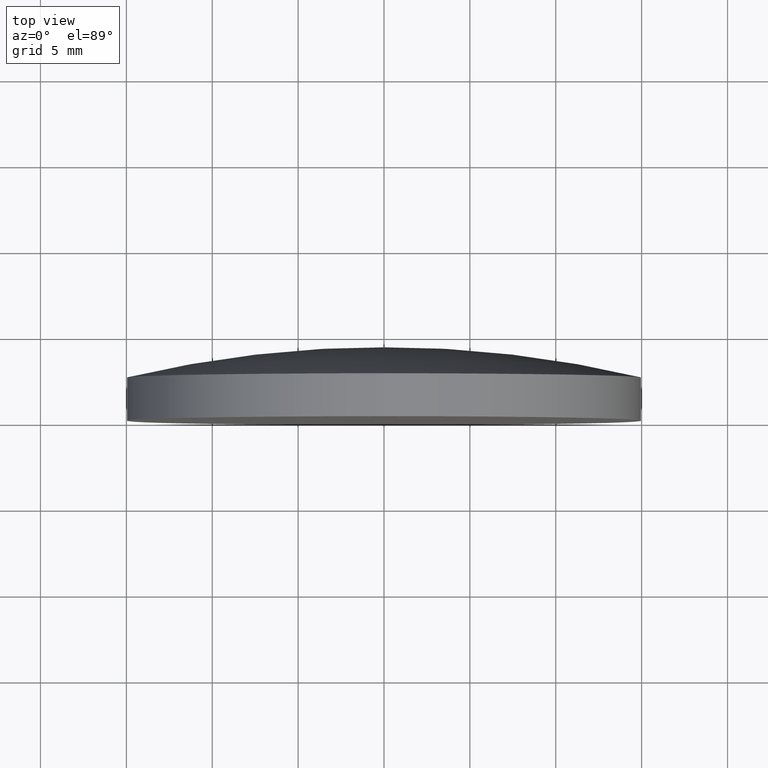
[diagram: clean part render]
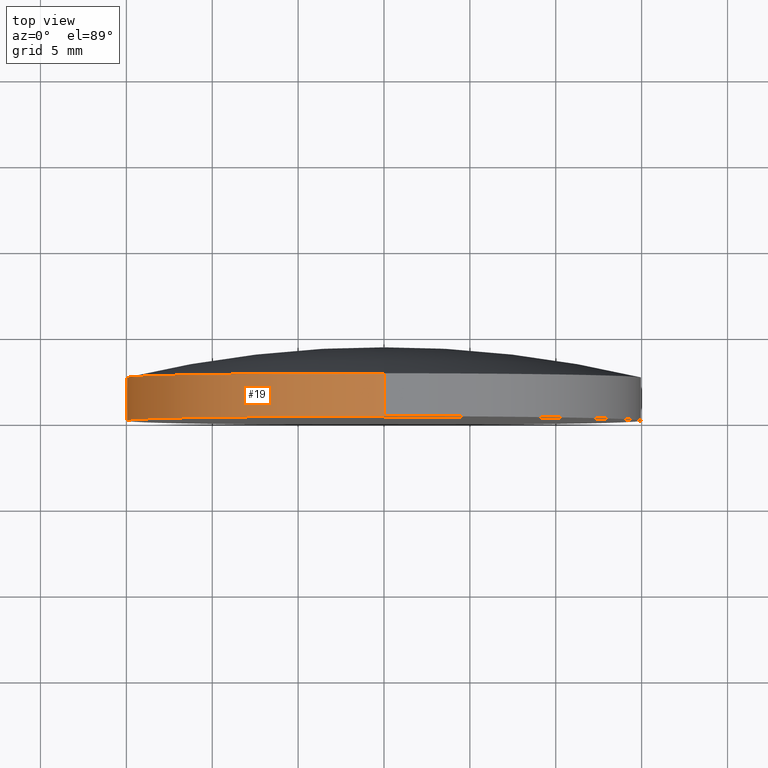
[diagram: same view with one face highlighted and labeled with its STEP entity id]
A machine part, top view. The second image highlights one B-rep face of the part: STEP entity #19.
In plain terms, the highlighted cylindrical surface (partial cylindrical patch) has radius 15 mm, axis along (-0, 1, -0).
Its self-contained STEP definition (entity closure, byte-faithful):
#5 = CARTESIAN_POINT ( 'NONE',  ( 1.836970198721029589E-15, -1.734723475976807094E-15, -15.00000000000000000 ) ) ;
#6 = EDGE_CURVE ( 'NONE', #97, #24, #102, .T. ) ;
#8 = AXIS2_PLACEMENT_3D ( 'NONE', #77, #139, #15 ) ;
#12 = DIRECTION ( 'NONE',  ( -0.000000000000000000, 1.000000000000000000, -0.000000000000000000 ) ) ;
#14 = CARTESIAN_POINT ( 'NONE',  ( 1.836970198721029589E-15, 2.499999999999996891, -15.00000000000000000 ) ) ;
#15 = DIRECTION ( 'NONE',  ( 0.000000000000000000, 0.000000000000000000, 1.000000000000000000 ) ) ;
#17 = CARTESIAN_POINT ( 'NONE',  ( 0.000000000000000000, 4.269999999999999574, 0.000000000000000000 ) ) ;
#19 = ADVANCED_FACE ( 'NONE', ( #184 ), #100, .T. ) ;
#24 = VERTEX_POINT ( 'NONE', #65 ) ;
#54 = ORIENTED_EDGE ( 'NONE', *, *, #58, .T. ) ;
#58 = EDGE_CURVE ( 'NONE', #190, #97, #85, .T. ) ;
#63 = DIRECTION ( 'NONE',  ( 0.000000000000000000, 0.000000000000000000, 1.000000000000000000 ) ) ;
#65 = CARTESIAN_POINT ( 'NONE',  ( 0.000000000000000000, 2.499999999999996891, 15.00000000000000000 ) ) ;
#67 = VECTOR ( 'NONE', #81, 1000.000000000000000 ) ;
#77 = CARTESIAN_POINT ( 'NONE',  ( 0.000000000000000000, -1.734723475976807094E-15, 0.000000000000000000 ) ) ;
#79 = CARTESIAN_POINT ( 'NONE',  ( 0.000000000000000000, 4.269999999999999574, 15.00000000000000000 ) ) ;
#81 = DIRECTION ( 'NONE',  ( -0.000000000000000000, 1.000000000000000000, -0.000000000000000000 ) ) ;
#85 = CIRCLE ( 'NONE', #8, 15.00000000000000000 ) ;
#89 = AXIS2_PLACEMENT_3D ( 'NONE', #145, #197, #63 ) ;
#97 = VERTEX_POINT ( 'NONE', #114 ) ;
#99 = ORIENTED_EDGE ( 'NONE', *, *, #170, .F. ) ;
#100 = CYLINDRICAL_SURFACE ( 'NONE', #192, 15.00000000000000000 ) ;
#101 = EDGE_LOOP ( 'NONE', ( #153, #54, #194, #99 ) ) ;
#102 = LINE ( 'NONE', #79, #187 ) ;
#110 = CARTESIAN_POINT ( 'NONE',  ( 1.836970198721029589E-15, 4.269999999999999574, -15.00000000000000000 ) ) ;
#114 = CARTESIAN_POINT ( 'NONE',  ( 0.000000000000000000, -1.734723475976807094E-15, 15.00000000000000000 ) ) ;
#124 = DIRECTION ( 'NONE',  ( -0.000000000000000000, 1.000000000000000000, -0.000000000000000000 ) ) ;
#127 = VERTEX_POINT ( 'NONE', #14 ) ;
#136 = EDGE_CURVE ( 'NONE', #190, #127, #182, .T. ) ;
#139 = DIRECTION ( 'NONE',  ( -0.000000000000000000, 1.000000000000000000, -0.000000000000000000 ) ) ;
#145 = CARTESIAN_POINT ( 'NONE',  ( 0.000000000000000000, 2.499999999999998224, 0.000000000000000000 ) ) ;
#153 = ORIENTED_EDGE ( 'NONE', *, *, #136, .F. ) ;
#170 = EDGE_CURVE ( 'NONE', #127, #24, #176, .T. ) ;
#172 = DIRECTION ( 'NONE',  ( 0.000000000000000000, 0.000000000000000000, 1.000000000000000000 ) ) ;
#176 = CIRCLE ( 'NONE', #89, 15.00000000000000000 ) ;
#182 = LINE ( 'NONE', #110, #67 ) ;
#184 = FACE_OUTER_BOUND ( 'NONE', #101, .T. ) ;
#187 = VECTOR ( 'NONE', #124, 1000.000000000000000 ) ;
#190 = VERTEX_POINT ( 'NONE', #5 ) ;
#192 = AXIS2_PLACEMENT_3D ( 'NONE', #17, #12, #172 ) ;
#194 = ORIENTED_EDGE ( 'NONE', *, *, #6, .T. ) ;
#197 = DIRECTION ( 'NONE',  ( -0.000000000000000000, 1.000000000000000000, -0.000000000000000000 ) ) ;